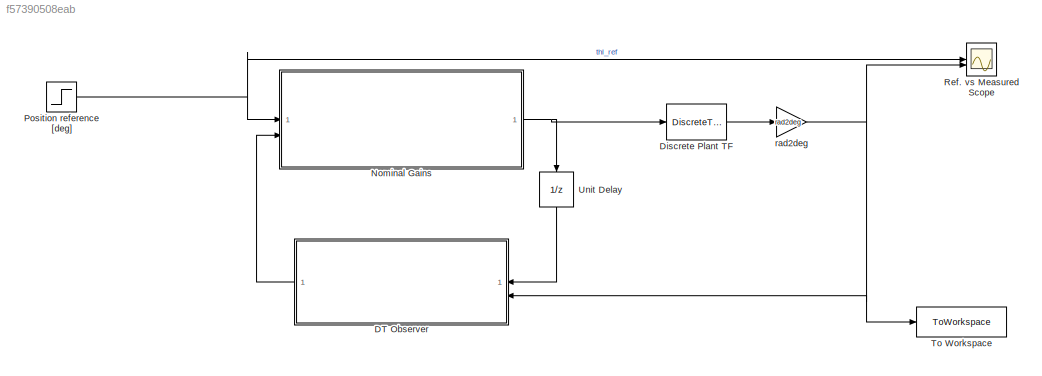
MODEL slx_f57390508eab
KIND model
CONFIG AbsTol = auto
CONFIG EnableMultiTasking = off
CONFIG FixedStep = auto
CONFIG MaxStep = auto
CONFIG MinStep = auto
CONFIG RelTol = 1e-3
CONFIG SampleTimeConstraint = Unconstrained
CONFIG SolverName = VariableStepDiscrete
CONFIG StartTime = 0.0
CONFIG StopTime = 3
BLOCK [SubSystem] DT Observer
  ReferencedSubsystem = discrete_reduced_order_observer
BLOCK [DiscreteTransferFcn] Discrete Plant TF
  Denominator = sigmaD_tf_den
  InputPortMap = u0
  Numerator = sigmaD_tf_num
BLOCK [SubSystem] Nominal Gains
  ReferencedSubsystem = controllerSSNominalReducedOrderObserver
BLOCK [Step] Position reference [deg]
  After = 50
  SampleTime = Ts
  Time = 0
BLOCK [Scope] Ref. vs Measured Scope
  Floating = off
  NumInputPorts = 2
  ScopeSpecificationString = Simulink.scopes.TimeScopeBlockCfg('CurrentConfiguration', extmgr.ConfigurationSet(extmgr.Configuration('Core','General UI',true),extmgr.Configuration('Core','Source UI',true),extmgr.Configuration('Sources','WiredSimulink',true,'SampleTime','Ts'),extmgr.Configuration('Visuals','Time Domain',true,'SerializedDisplays',{struct('MinYLimReal','-1267.46266','MaxYLimReal','11407.16398','YLabelReal','','Mi...<+1518ch>
BLOCK [ToWorkspace] To Workspace
  FixptAsFi = on
  MaxDataPoints = inf
  SampleTime = -1
  SaveFormat = Timeseries
  VariableName = pos_measured
BLOCK [UnitDelay] Unit Delay
  HasFrameUpgradeWarning = on
  NameLocation = right
  SampleTime = -1
BLOCK [Gain] rad2deg
  Gain = rad2deg
LINE DT Observer:1 -> Nominal Gains:2
LINE Discrete Plant TF:1 -> rad2deg:1
NET Nominal Gains:1 -> Discrete Plant TF:1, Unit Delay:1
NET Position reference [deg]:1 -> Nominal Gains:1, Ref. vs Measured Scope:1
LINE Unit Delay:1 -> DT Observer:1
NET rad2deg:1 -> DT Observer:2, Ref. vs Measured Scope:2, To Workspace:1
note: NET lines group one-source signal fan-out (src -> all destinations, sorted); 1:1 wires keep LINE
